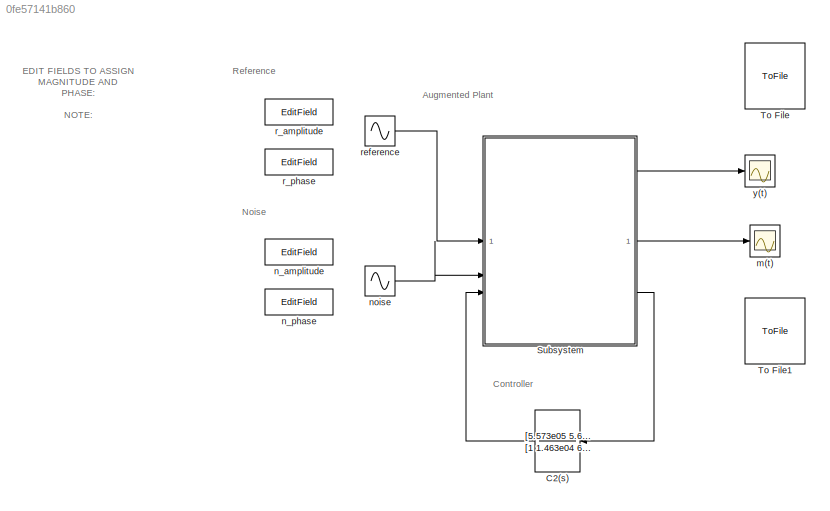
MODEL slx_0fe57141b860
KIND model
CONFIG AbsTol = auto
CONFIG EnableMultiTasking = off
CONFIG FixedStep = auto
CONFIG MaxStep = auto
CONFIG MinStep = auto
CONFIG RelTol = 1e-3
CONFIG SampleTimeConstraint = Unconstrained
CONFIG SolverName = VariableStepAuto
CONFIG StartTime = 0.0
CONFIG StopTime = 10.0
WORKSPACE source: mxarray member
WORKSPACE Phi_n = 0
BLOCK [TransferFcn] C2(s)
  Denominator = [1 1.463e04 6.843e06 1.363e07]
  Numerator = [5.573e05 5.628e08 5.573e09]
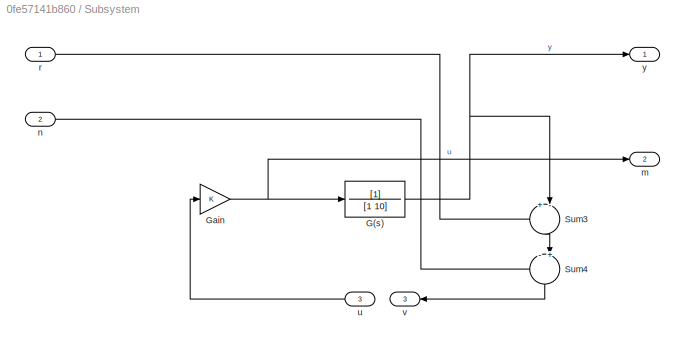
BLOCK [SubSystem] Subsystem
BLOCK [TransferFcn] Subsystem/G(s)
  Denominator = [1 10]
BLOCK [Gain] Subsystem/Gain
BLOCK [Sum] Subsystem/Sum3
  Inputs = +-|
  NameLocation = left
BLOCK [Sum] Subsystem/Sum4
  Inputs = -+|
  NameLocation = left
BLOCK [Outport] Subsystem/m
  Port = 2
BLOCK [Inport] Subsystem/n
  Port = 2
BLOCK [Inport] Subsystem/r
BLOCK [Inport] Subsystem/u
  Port = 3
BLOCK [Outport] Subsystem/v
  Port = 3
BLOCK [Outport] Subsystem/y
BLOCK [ToFile] To File
  Filename = y2_max.mat
  SaveFormat = Timeseries
BLOCK [ToFile] To File1
  Filename = m2_max.mat
  SaveFormat = Timeseries
BLOCK [Scope] m(t)
  Floating = off
  NumInputPorts = 1
  ScopeSpecificationString = Simulink.scopes.TimeScopeBlockCfg('CurrentConfiguration', extmgr.ConfigurationSet(extmgr.Configuration('Core','General UI',true),extmgr.Configuration('Core','Source UI',true),extmgr.Configuration('Sources','WiredSimulink',true,'DataLoggingVariableName','ScopeData1'),extmgr.Configuration('Visuals','Time Domain',true,'SerializedDisplays',{struct('MinYLimReal','-24.86403','MaxYLimReal','24.25735','YL...<+1511ch>
BLOCK [EditField] n_amplitude
  Alignment = Center
  LabelPosition = Hide
  ShowInitialText = on
BLOCK [EditField] n_phase
  Alignment = Center
  LabelPosition = Hide
  ShowInitialText = on
BLOCK [Sin] noise
  Amplitude = 0.7071
  Frequency = 10
  SampleTime = 0
BLOCK [EditField] r_amplitude
  Alignment = Center
  LabelPosition = Hide
  ShowInitialText = on
BLOCK [EditField] r_phase
  Alignment = Center
  LabelPosition = Hide
  ShowInitialText = on
BLOCK [Sin] reference
  Amplitude = 0.7071
  Frequency = 10
  Phase = pi
  SampleTime = 0
BLOCK [Scope] y(t)
  Floating = off
  NumInputPorts = 1
  ScopeSpecificationString = Simulink.scopes.TimeScopeBlockCfg('CurrentConfiguration', extmgr.ConfigurationSet(extmgr.Configuration('Core','General UI',true),extmgr.Configuration('Core','Source UI',true),extmgr.Configuration('Sources','WiredSimulink',true),extmgr.Configuration('Visuals','Time Domain',true,'SerializedDisplays',{struct('MinYLimReal','-1.71565','MaxYLimReal','1.71569','YLabelReal','','MinYLimMag','0.00000','MaxY...<+1449ch>
ANNOTATION (root): Augmented Plant
ANNOTATION (root): Controller
ANNOTATION (root): EDIT FIELDS TO ASSIGN MAGNITUDE AND PHASE: NOTE: MAX AMPLIFICATION: - Same magnitude - opposite Phase (pi, 0) NULL OUTPUT: - Same magnitude - Same Phase
ANNOTATION (root): Noise
ANNOTATION (root): Reference
LINE C2(s):1 -> Subsystem:3
NET Subsystem/G(s):1 -> Subsystem/Sum3:2, Subsystem/y:1
NET Subsystem/Gain:1 -> Subsystem/G(s):1, Subsystem/m:1
LINE Subsystem/Sum3:1 -> Subsystem/Sum4:2
LINE Subsystem/Sum4:1 -> Subsystem/v:1
LINE Subsystem/n:1 -> Subsystem/Sum4:1
LINE Subsystem/r:1 -> Subsystem/Sum3:1
LINE Subsystem/u:1 -> Subsystem/Gain:1
LINE Subsystem:1 -> y(t):1
LINE Subsystem:2 -> m(t):1
LINE Subsystem:3 -> C2(s):1
LINE noise:1 -> Subsystem:2
LINE reference:1 -> Subsystem:1
note: NET lines group one-source signal fan-out (src -> all destinations, sorted); 1:1 wires keep LINE
